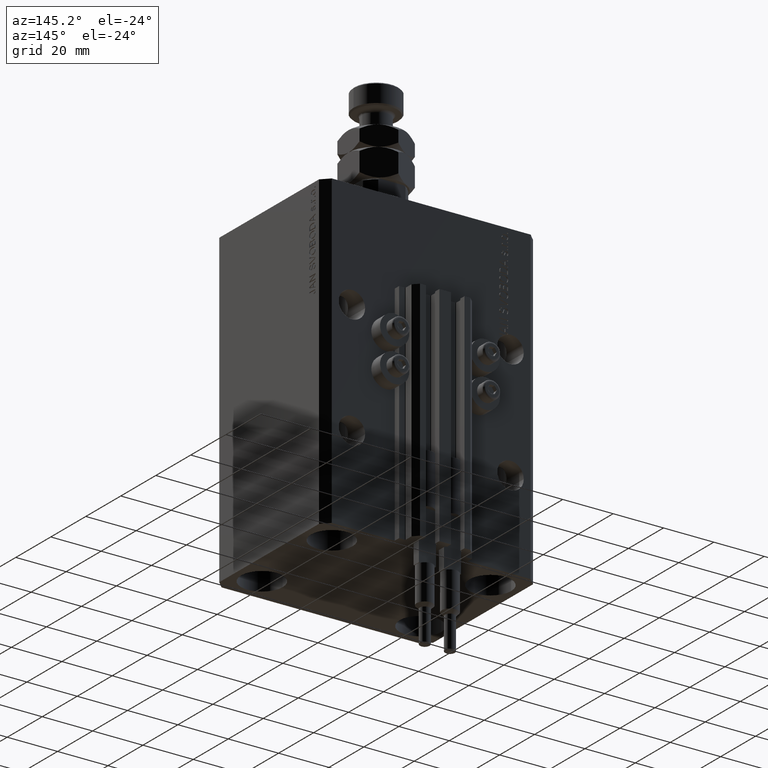
[diagram: clean part render]
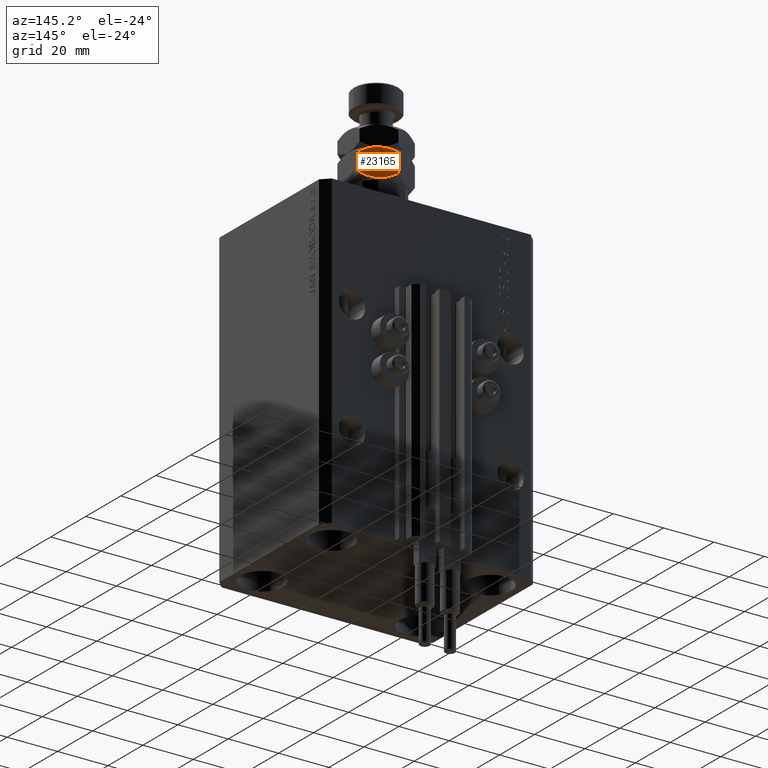
[diagram: same view with one face highlighted and labeled with its STEP entity id]
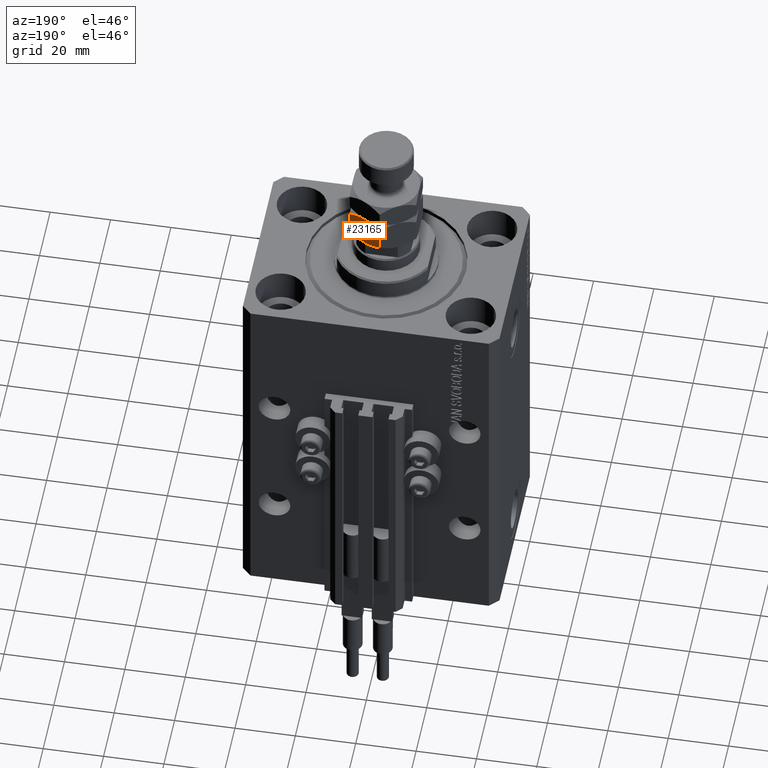
[diagram: same view with one face highlighted and labeled with its STEP entity id]
A machine part, auxiliary view. The second image highlights one B-rep face of the part: STEP entity #23165.
A second angle (auxiliary view) of the same face is appended — the face is thin or edge-on in the first view.
In plain terms, the highlighted planar face has unit normal (-0.5, -0.866, 0).
Its self-contained STEP definition (entity closure, byte-faithful):
#189 = VERTEX_POINT ( 'NONE', #16920 ) ;
#423 = CARTESIAN_POINT ( 'NONE',  ( 7.420105971005182433, 8.417705742396377033, 10.79187792513293154 ) ) ;
#433 = DIRECTION ( 'NONE',  ( -0.4999999999999998890, -0.8660254037844387076, 0.000000000000000000 ) ) ;
#491 = ORIENTED_EDGE ( 'NONE', *, *, #12327, .T. ) ;
#1800 = CARTESIAN_POINT ( 'NONE',  ( 10.13851939750335696, 6.848229018838962290, 1.204329864418605567 ) ) ;
#1851 = VECTOR ( 'NONE', #50593, 1000.000000000000000 ) ;
#3117 = B_SPLINE_CURVE_WITH_KNOTS ( 'NONE', 3,
 ( #25075, #36338, #40688, #5647, #1800, #31774 ),
 .UNSPECIFIED., .F., .F.,
 ( 4, 2, 4 ),
 ( 0.006583488920348296025, 0.009852050593448707927, 0.01312061226654912330 ),
 .UNSPECIFIED. ) ;
#5510 = AXIS2_PLACEMENT_3D ( 'NONE', #47249, #433, #12196 ) ;
#5647 = CARTESIAN_POINT ( 'NONE',  ( 9.251785468064189999, 7.360185091700237159, 0.7776848045220270400 ) ) ;
#10391 = CARTESIAN_POINT ( 'NONE',  ( 3.602926119288152318, 10.62155555733041901, 10.83109139163524581 ) ) ;
#10475 = B_SPLINE_CURVE_WITH_KNOTS ( 'NONE', 3,
 ( #12825, #47642, #31540, #23859, #35876, #35372, #47404, #28447 ),
 .UNSPECIFIED., .F., .F.,
 ( 4, 2, 2, 4 ),
 ( 2.544311317623912303E-07, 0.003291871675740029504, 0.004937680298044162114, 0.006583488920348296025 ),
 .UNSPECIFIED. ) ;
#11822 = EDGE_CURVE ( 'NONE', #20965, #40471, #3117, .T. ) ;
#12196 = DIRECTION ( 'NONE',  ( 0.8660254037844387076, -0.4999999999999998890, 0.000000000000000000 ) ) ;
#12327 = EDGE_CURVE ( 'NONE', #35680, #40471, #42142, .T. ) ;
#12428 = CARTESIAN_POINT ( 'NONE',  ( 10.13752086928278295, 6.848805519375901874, 9.796246636118256745 ) ) ;
#12825 = CARTESIAN_POINT ( 'NONE',  ( 9.006588997586899406E-16, 12.70170592217176342, 1.701705922171758312 ) ) ;
#15590 = ORIENTED_EDGE ( 'NONE', *, *, #46325, .F. ) ;
#16920 = CARTESIAN_POINT ( 'NONE',  ( 5.499999999999998224, 9.526279441628819455, 11.00000000000000000 ) ) ;
#19877 = PLANE ( 'NONE',  #5510 ) ;
#20901 = VERTEX_POINT ( 'NONE', #28716 ) ;
#20965 = VERTEX_POINT ( 'NONE', #38159 ) ;
#21344 = ORIENTED_EDGE ( 'NONE', *, *, #21934, .F. ) ;
#21934 = EDGE_CURVE ( 'NONE', #35680, #189, #26154, .T. ) ;
#22172 = CARTESIAN_POINT ( 'NONE',  ( 5.499999999999998224, 9.526279441628819455, 11.00000000000000000 ) ) ;
#22422 = CARTESIAN_POINT ( 'NONE',  ( 4.543329525579426154, 10.07861339756131080, 11.00000000000000000 ) ) ;
#22930 = CARTESIAN_POINT ( 'NONE',  ( 1.748214531935807559, 11.69237379155741152, 10.22231519547797518 ) ) ;
#23165 = ADVANCED_FACE ( 'NONE', ( #46994 ), #19877, .F. ) ;
#23729 = CARTESIAN_POINT ( 'NONE',  ( 11.00000000000000000, 6.350852961085883486, 1.701705922171761198 ) ) ;
#23859 = CARTESIAN_POINT ( 'NONE',  ( 3.115032419653387397, 10.90324111615047364, 0.3282192120904029453 ) ) ;
#24437 = CARTESIAN_POINT ( 'NONE',  ( 6.470625887979895019, 8.965888323921213043, 10.95634070256487824 ) ) ;
#25075 = CARTESIAN_POINT ( 'NONE',  ( 5.499999999999999112, 9.526279441628826561, 0.000000000000000000 ) ) ;
#25876 = B_SPLINE_CURVE_WITH_KNOTS ( 'NONE', 3,
 ( #22172, #22422, #10391, #22930, #49521, #42114 ),
 .UNSPECIFIED., .F., .F.,
 ( 4, 2, 4 ),
 ( 0.006583488920348298627, 0.009852050593448711396, 0.01312061226654912156 ),
 .UNSPECIFIED. ) ;
#26154 = B_SPLINE_CURVE_WITH_KNOTS ( 'NONE', 3,
 ( #43397, #12428, #39794, #35456, #423, #24437, #32367, #40298 ),
 .UNSPECIFIED., .F., .F.,
 ( 4, 2, 2, 4 ),
 ( 2.544311317614349830E-07, 0.003291871675740032106, 0.004937680298044164716, 0.006583488920348298627 ),
 .UNSPECIFIED. ) ;
#26293 = CARTESIAN_POINT ( 'NONE',  ( 11.00000000000000000, 6.350852961085883486, 11.00000000000000000 ) ) ;
#28107 = ORIENTED_EDGE ( 'NONE', *, *, #46219, .F. ) ;
#28447 = CARTESIAN_POINT ( 'NONE',  ( 5.499999999999999112, 9.526279441628826561, 0.000000000000000000 ) ) ;
#28716 = CARTESIAN_POINT ( 'NONE',  ( 9.006588997586899406E-16, 12.70170592217176342, 1.701705922171758312 ) ) ;
#30226 = DIRECTION ( 'NONE',  ( -0.000000000000000000, -0.000000000000000000, -1.000000000000000000 ) ) ;
#30479 = CARTESIAN_POINT ( 'NONE',  ( 0.000000000000000000, 12.70170592217176342, 11.00000000000000000 ) ) ;
#30715 = VECTOR ( 'NONE', #30226, 1000.000000000000000 ) ;
#31540 = CARTESIAN_POINT ( 'NONE',  ( 1.744478007639208350, 11.69453107486588195, 0.7806233875467714078 ) ) ;
#31774 = CARTESIAN_POINT ( 'NONE',  ( 11.00000000000000000, 6.350852961085883486, 1.701705922171761198 ) ) ;
#31929 = ORIENTED_EDGE ( 'NONE', *, *, #34417, .F. ) ;
#32367 = CARTESIAN_POINT ( 'NONE',  ( 5.981709287746640236, 9.248164454677155533, 11.00000000000000000 ) ) ;
#34417 = EDGE_CURVE ( 'NONE', #189, #35249, #25876, .T. ) ;
#34449 = CARTESIAN_POINT ( 'NONE',  ( -4.327962126576701651E-16, 12.70170592217176342, 9.298294077828241910 ) ) ;
#35150 = CARTESIAN_POINT ( 'NONE',  ( 11.00000000000000000, 6.350852961085883486, 9.298294077828240134 ) ) ;
#35195 = EDGE_LOOP ( 'NONE', ( #28107, #15590, #31929, #21344, #491, #43861 ) ) ;
#35249 = VERTEX_POINT ( 'NONE', #34449 ) ;
#35372 = CARTESIAN_POINT ( 'NONE',  ( 4.529374112020105869, 10.08667055933643830, 0.04365929743512447087 ) ) ;
#35456 = CARTESIAN_POINT ( 'NONE',  ( 7.884967580346613936, 8.149317767107177701, 10.67178078790959717 ) ) ;
#35680 = VERTEX_POINT ( 'NONE', #35150 ) ;
#35876 = CARTESIAN_POINT ( 'NONE',  ( 3.579894028994819788, 10.63485314086127431, 0.2081220748670722098 ) ) ;
#36338 = CARTESIAN_POINT ( 'NONE',  ( 6.456670474420574735, 8.973945485696338764, -1.192622389734053694E-15 ) ) ;
#38159 = CARTESIAN_POINT ( 'NONE',  ( 5.499999999999999112, 9.526279441628826561, 0.000000000000000000 ) ) ;
#39794 = CARTESIAN_POINT ( 'NONE',  ( 9.255521992360790762, 7.358027808391762292, 10.21937661245322460 ) ) ;
#40298 = CARTESIAN_POINT ( 'NONE',  ( 5.499999999999998224, 9.526279441628819455, 11.00000000000000000 ) ) ;
#40471 = VERTEX_POINT ( 'NONE', #23729 ) ;
#40688 = CARTESIAN_POINT ( 'NONE',  ( 7.397073880711847238, 8.431003325927232339, 0.1689086083647579339 ) ) ;
#41478 = LINE ( 'NONE', #30479, #30715 ) ;
#42114 = CARTESIAN_POINT ( 'NONE',  ( -4.327962126576701651E-16, 12.70170592217176342, 9.298294077828241910 ) ) ;
#42142 = LINE ( 'NONE', #26293, #1851 ) ;
#43397 = CARTESIAN_POINT ( 'NONE',  ( 11.00000000000000000, 6.350852961085883486, 9.298294077828240134 ) ) ;
#43861 = ORIENTED_EDGE ( 'NONE', *, *, #11822, .F. ) ;
#46219 = EDGE_CURVE ( 'NONE', #20901, #20965, #10475, .T. ) ;
#46325 = EDGE_CURVE ( 'NONE', #35249, #20901, #41478, .T. ) ;
#46994 = FACE_OUTER_BOUND ( 'NONE', #35195, .T. ) ;
#47249 = CARTESIAN_POINT ( 'NONE',  ( 11.00000000000000000, 6.350852961085883486, 11.00000000000000000 ) ) ;
#47404 = CARTESIAN_POINT ( 'NONE',  ( 5.018290712253357100, 9.804394428580492260, -1.345088320239828938E-15 ) ) ;
#47642 = CARTESIAN_POINT ( 'NONE',  ( 0.8624791307172143817, 12.20375336388174503, 1.203753363881742811 ) ) ;
#49521 = CARTESIAN_POINT ( 'NONE',  ( 0.8614806024966432663, 12.20432986441868728, 9.795670135581396210 ) ) ;
#50593 = DIRECTION ( 'NONE',  ( -0.000000000000000000, -0.000000000000000000, -1.000000000000000000 ) ) ;